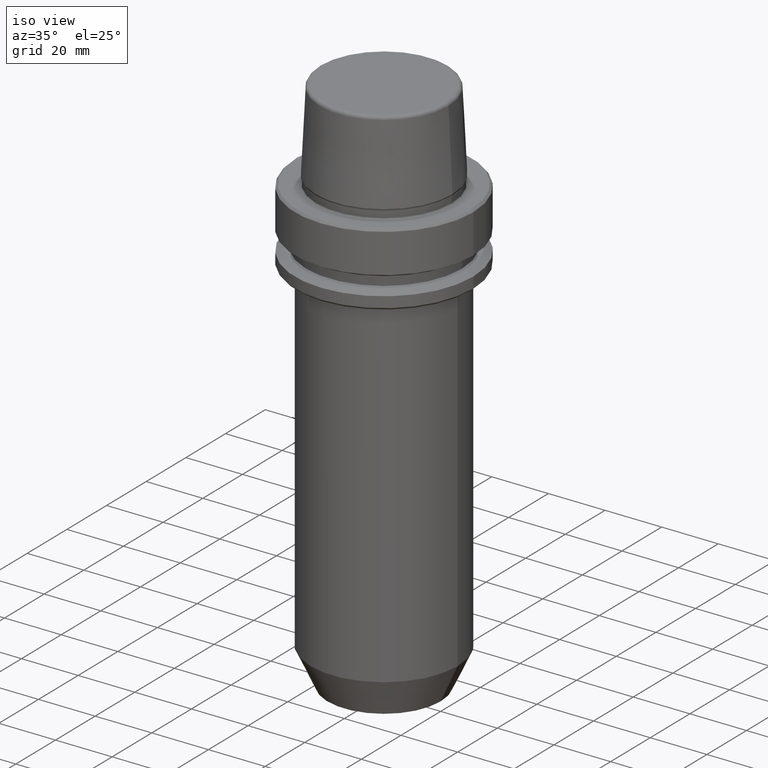
[diagram: clean part render]
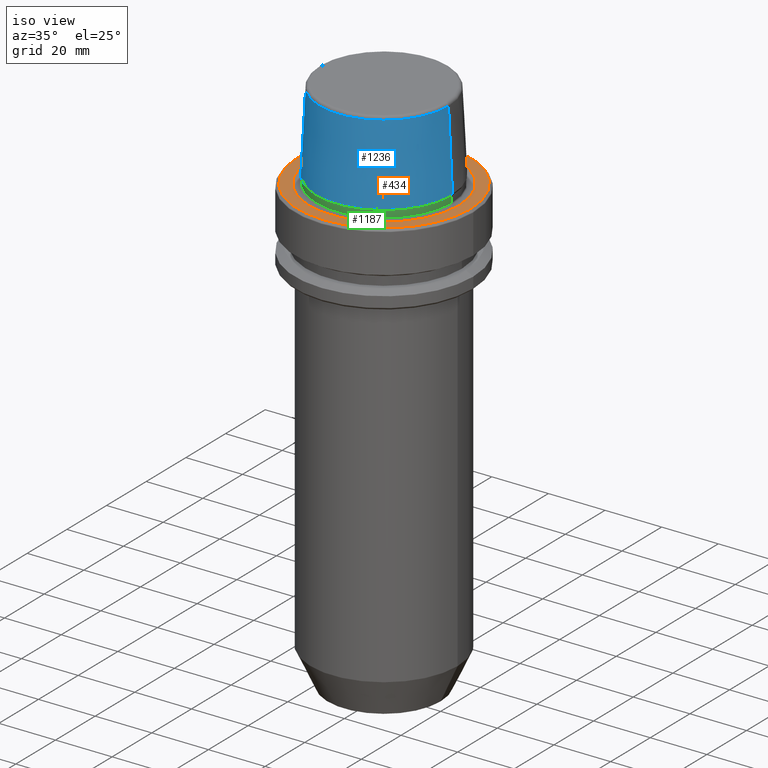
[diagram: same view with three faces highlighted in distinct colors, each labeled with its STEP entity id]
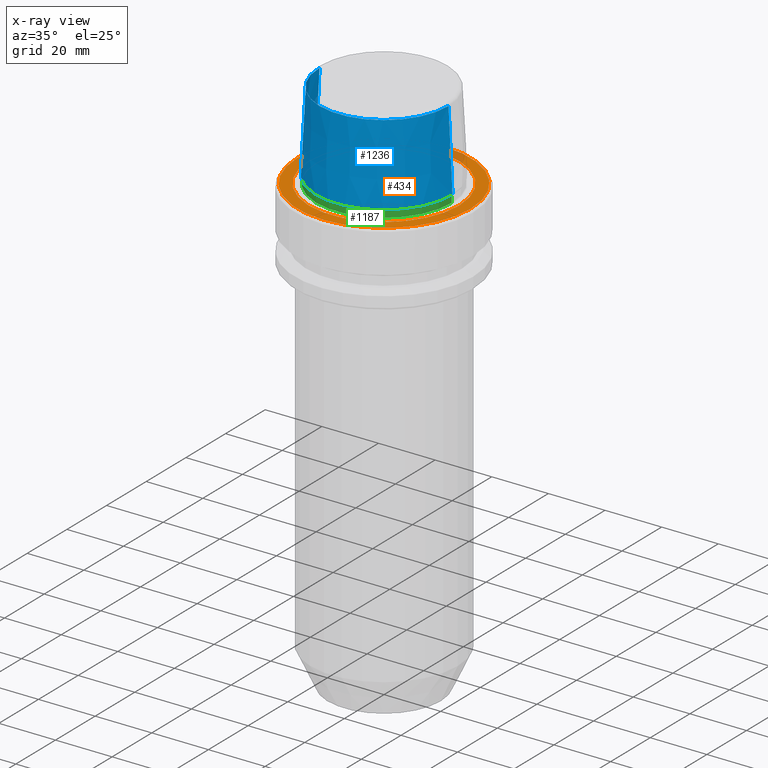
[diagram: x-ray of the same camera — body ghosted, the three highlighted faces saturated]
A machine part, iso view with three faces highlighted in distinct colors.
The next image is the same camera in x-ray (body ghosted, the three faces saturated) — at least one of them is partly hidden behind the body in this view.
Their STEP definitions:

[orange] entity #434 — the highlighted planar face has unit normal (0, 0, -1).
#4 = DIRECTION ( 'NONE',  ( -0.0000000000000000000, -0.0000000000000000000, 1.000000000000000000 ) ) ;
#22 = CIRCLE ( 'NONE', #111, 26.52499999999999900 ) ;
#33 = DIRECTION ( 'NONE',  ( 1.000000000000000000, 0.0000000000000000000, 0.0000000000000000000 ) ) ;
#40 = FACE_BOUND ( 'NONE', #356, .T. ) ;
#84 = CARTESIAN_POINT ( 'NONE',  ( -30.53431457505076100, 3.756694181974138600E-015, 0.0000000000000000000 ) ) ;
#111 = AXIS2_PLACEMENT_3D ( 'NONE', #684, #4, #581 ) ;
#183 = DIRECTION ( 'NONE',  ( 0.0000000000000000000, 0.0000000000000000000, -1.000000000000000000 ) ) ;
#219 = ORIENTED_EDGE ( 'NONE', *, *, #284, .T. ) ;
#277 = CARTESIAN_POINT ( 'NONE',  ( 0.0000000000000000000, 26.52499999999999900, -1.111307226797642000E-015 ) ) ;
#284 = EDGE_CURVE ( 'NONE', #1058, #1141, #681, .T. ) ;
#294 = ORIENTED_EDGE ( 'NONE', *, *, #944, .F. ) ;
#335 = DIRECTION ( 'NONE',  ( 1.000000000000000000, 0.0000000000000000000, 0.0000000000000000000 ) ) ;
#356 = EDGE_LOOP ( 'NONE', ( #294, #956 ) ) ;
#426 = CARTESIAN_POINT ( 'NONE',  ( 0.0000000000000000000, 0.0000000000000000000, 0.0000000000000000000 ) ) ;
#434 = ADVANCED_FACE ( 'NONE', ( #40, #876 ), #468, .F. ) ;
#438 = AXIS2_PLACEMENT_3D ( 'NONE', #277, #183, #758 ) ;
#441 = VERTEX_POINT ( 'NONE', #954 ) ;
#468 = PLANE ( 'NONE',  #438 ) ;
#490 = EDGE_CURVE ( 'NONE', #1257, #441, #793, .T. ) ;
#548 = CARTESIAN_POINT ( 'NONE',  ( 0.0000000000000000000, 0.0000000000000000000, 0.0000000000000000000 ) ) ;
#581 = DIRECTION ( 'NONE',  ( 1.000000000000000000, 0.0000000000000000000, 0.0000000000000000000 ) ) ;
#642 = EDGE_CURVE ( 'NONE', #1141, #1058, #843, .T. ) ;
#643 = DIRECTION ( 'NONE',  ( -0.0000000000000000000, -0.0000000000000000000, 1.000000000000000000 ) ) ;
#665 = DIRECTION ( 'NONE',  ( -0.0000000000000000000, -0.0000000000000000000, 1.000000000000000000 ) ) ;
#681 = CIRCLE ( 'NONE', #919, 30.53431457505076100 ) ;
#684 = CARTESIAN_POINT ( 'NONE',  ( 0.0000000000000000000, 0.0000000000000000000, 0.0000000000000000000 ) ) ;
#696 = CARTESIAN_POINT ( 'NONE',  ( 0.0000000000000000000, 0.0000000000000000000, 0.0000000000000000000 ) ) ;
#712 = EDGE_LOOP ( 'NONE', ( #219, #961 ) ) ;
#741 = DIRECTION ( 'NONE',  ( 1.000000000000000000, 0.0000000000000000000, 0.0000000000000000000 ) ) ;
#742 = CARTESIAN_POINT ( 'NONE',  ( -26.52499999999999900, 3.248375634738354300E-015, 0.0000000000000000000 ) ) ;
#758 = DIRECTION ( 'NONE',  ( -1.000000000000000000, 0.0000000000000000000, -0.0000000000000000000 ) ) ;
#793 = CIRCLE ( 'NONE', #1023, 26.52499999999999900 ) ;
#843 = CIRCLE ( 'NONE', #941, 30.53431457505076100 ) ;
#876 = FACE_OUTER_BOUND ( 'NONE', #712, .T. ) ;
#919 = AXIS2_PLACEMENT_3D ( 'NONE', #548, #643, #741 ) ;
#941 = AXIS2_PLACEMENT_3D ( 'NONE', #426, #1004, #335 ) ;
#944 = EDGE_CURVE ( 'NONE', #441, #1257, #22, .T. ) ;
#952 = CARTESIAN_POINT ( 'NONE',  ( 30.53431457505076100, 0.0000000000000000000, 0.0000000000000000000 ) ) ;
#954 = CARTESIAN_POINT ( 'NONE',  ( 26.52499999999999900, 0.0000000000000000000, 0.0000000000000000000 ) ) ;
#956 = ORIENTED_EDGE ( 'NONE', *, *, #490, .F. ) ;
#961 = ORIENTED_EDGE ( 'NONE', *, *, #642, .T. ) ;
#1004 = DIRECTION ( 'NONE',  ( -0.0000000000000000000, -0.0000000000000000000, 1.000000000000000000 ) ) ;
#1023 = AXIS2_PLACEMENT_3D ( 'NONE', #696, #665, #33 ) ;
#1058 = VERTEX_POINT ( 'NONE', #952 ) ;
#1141 = VERTEX_POINT ( 'NONE', #84 ) ;
#1257 = VERTEX_POINT ( 'NONE', #742 ) ;

[blue] entity #1236 — the highlighted conical surface has half-angle 2.868 deg.
#59 = CARTESIAN_POINT ( 'NONE',  ( 22.77957961851797100, 2.874852597157249900E-015, 30.76004333261571900 ) ) ;
#76 = ORIENTED_EDGE ( 'NONE', *, *, #338, .F. ) ;
#102 = ORIENTED_EDGE ( 'NONE', *, *, #777, .T. ) ;
#107 = CIRCLE ( 'NONE', #685, 22.77957961851797100 ) ;
#125 = DIRECTION ( 'NONE',  ( -0.0000000000000000000, -0.0000000000000000000, 1.000000000000000000 ) ) ;
#131 = FACE_OUTER_BOUND ( 'NONE', #1181, .T. ) ;
#143 = CARTESIAN_POINT ( 'NONE',  ( -24.17032625081241900, 0.0000000000000000000, 3.000000000000002700 ) ) ;
#158 = AXIS2_PLACEMENT_3D ( 'NONE', #449, #255, #934 ) ;
#178 = CARTESIAN_POINT ( 'NONE',  ( -22.77957961851797100, 0.0000000000000000000, 30.76004333261571900 ) ) ;
#190 = VERTEX_POINT ( 'NONE', #1089 ) ;
#231 = DIRECTION ( 'NONE',  ( -0.05003611051310812000, 0.0000000000000000000, -0.9987474093306675200 ) ) ;
#255 = DIRECTION ( 'NONE',  ( 0.0000000000000000000, 0.0000000000000000000, -1.000000000000000000 ) ) ;
#281 = ORIENTED_EDGE ( 'NONE', *, *, #616, .F. ) ;
#309 = EDGE_CURVE ( 'NONE', #1124, #190, #1182, .T. ) ;
#332 = AXIS2_PLACEMENT_3D ( 'NONE', #798, #125, #707 ) ;
#338 = EDGE_CURVE ( 'NONE', #1237, #346, #1113, .T. ) ;
#344 = VECTOR ( 'NONE', #231, 1000.000000000000200 ) ;
#345 = DIRECTION ( 'NONE',  ( 1.000000000000000000, 0.0000000000000000000, 0.0000000000000000000 ) ) ;
#346 = VERTEX_POINT ( 'NONE', #1245 ) ;
#436 = CARTESIAN_POINT ( 'NONE',  ( 0.0000000000000000000, 0.0000000000000000000, 30.76004333261571900 ) ) ;
#444 = VECTOR ( 'NONE', #951, 1000.000000000000200 ) ;
#449 = CARTESIAN_POINT ( 'NONE',  ( 0.0000000000000000000, 0.0000000000000000000, 3.000000000000002700 ) ) ;
#531 = ORIENTED_EDGE ( 'NONE', *, *, #309, .T. ) ;
#616 = EDGE_CURVE ( 'NONE', #1124, #1237, #107, .T. ) ;
#685 = AXIS2_PLACEMENT_3D ( 'NONE', #436, #1011, #345 ) ;
#707 = DIRECTION ( 'NONE',  ( 1.000000000000000000, 0.0000000000000000000, 0.0000000000000000000 ) ) ;
#777 = EDGE_CURVE ( 'NONE', #190, #346, #901, .T. ) ;
#798 = CARTESIAN_POINT ( 'NONE',  ( 0.0000000000000000000, 0.0000000000000000000, 3.000000000000002700 ) ) ;
#901 = CIRCLE ( 'NONE', #332, 24.17032625081241900 ) ;
#931 = CONICAL_SURFACE ( 'NONE', #158, 24.17032625081241900, 0.05005701257456005000 ) ;
#934 = DIRECTION ( 'NONE',  ( -1.000000000000000000, 0.0000000000000000000, 0.0000000000000000000 ) ) ;
#951 = DIRECTION ( 'NONE',  ( 0.05003611051310812000, 6.127656258166108900E-018, -0.9987474093306675200 ) ) ;
#1011 = DIRECTION ( 'NONE',  ( -0.0000000000000000000, -0.0000000000000000000, 1.000000000000000000 ) ) ;
#1089 = CARTESIAN_POINT ( 'NONE',  ( -24.17032625081241900, 2.960011267740467600E-015, 3.000000000000002700 ) ) ;
#1113 = LINE ( 'NONE', #1146, #444 ) ;
#1124 = VERTEX_POINT ( 'NONE', #178 ) ;
#1146 = CARTESIAN_POINT ( 'NONE',  ( 24.17032625081241900, 2.960011267740467600E-015, 3.000000000000002700 ) ) ;
#1181 = EDGE_LOOP ( 'NONE', ( #76, #281, #531, #102 ) ) ;
#1182 = LINE ( 'NONE', #143, #344 ) ;
#1236 = ADVANCED_FACE ( 'NONE', ( #131 ), #931, .T. ) ;
#1237 = VERTEX_POINT ( 'NONE', #59 ) ;
#1245 = CARTESIAN_POINT ( 'NONE',  ( 24.17032625081241900, 0.0000000000000000000, 3.000000000000002700 ) ) ;

[green] entity #1187 — the highlighted cylindrical surface (partial cylindrical patch) has radius 23.89 mm, axis along (-0, -0, 1).
#19 = AXIS2_PLACEMENT_3D ( 'NONE', #262, #74, #649 ) ;
#70 = CYLINDRICAL_SURFACE ( 'NONE', #19, 23.89000000000000100 ) ;
#74 = DIRECTION ( 'NONE',  ( -0.0000000000000000000, -0.0000000000000000000, 1.000000000000000000 ) ) ;
#92 = EDGE_CURVE ( 'NONE', #163, #1096, #382, .T. ) ;
#120 = VECTOR ( 'NONE', #791, 1000.000000000000000 ) ;
#127 = DIRECTION ( 'NONE',  ( 1.000000000000000000, 0.0000000000000000000, 0.0000000000000000000 ) ) ;
#163 = VERTEX_POINT ( 'NONE', #611 ) ;
#166 = AXIS2_PLACEMENT_3D ( 'NONE', #773, #754, #127 ) ;
#262 = CARTESIAN_POINT ( 'NONE',  ( 0.0000000000000000000, 0.0000000000000000000, 78.96908074195309300 ) ) ;
#287 = EDGE_CURVE ( 'NONE', #323, #1096, #644, .T. ) ;
#315 = CARTESIAN_POINT ( 'NONE',  ( 23.89000000000000400, 0.0000000000000000000, 0.1312552021302954000 ) ) ;
#323 = VERTEX_POINT ( 'NONE', #315 ) ;
#339 = CARTESIAN_POINT ( 'NONE',  ( -23.89000000000000400, 2.961613815265650600E-015, 0.1312552021302954000 ) ) ;
#382 = CIRCLE ( 'NONE', #701, 23.89000000000000100 ) ;
#386 = CARTESIAN_POINT ( 'NONE',  ( -23.89000000000000100, 2.925681203163027000E-015, 78.96908074195309300 ) ) ;
#458 = ORIENTED_EDGE ( 'NONE', *, *, #92, .F. ) ;
#485 = DIRECTION ( 'NONE',  ( -0.0000000000000000000, -0.0000000000000000000, 1.000000000000000000 ) ) ;
#537 = EDGE_CURVE ( 'NONE', #637, #323, #810, .T. ) ;
#549 = ORIENTED_EDGE ( 'NONE', *, *, #287, .T. ) ;
#558 = DIRECTION ( 'NONE',  ( 1.000000000000000000, 0.0000000000000000000, 0.0000000000000000000 ) ) ;
#611 = CARTESIAN_POINT ( 'NONE',  ( -23.89000000000000100, 2.942846235451747500E-015, 2.398838415132276100 ) ) ;
#637 = VERTEX_POINT ( 'NONE', #339 ) ;
#644 = LINE ( 'NONE', #890, #120 ) ;
#649 = DIRECTION ( 'NONE',  ( 1.000000000000000000, 0.0000000000000000000, 0.0000000000000000000 ) ) ;
#701 = AXIS2_PLACEMENT_3D ( 'NONE', #1248, #1137, #558 ) ;
#754 = DIRECTION ( 'NONE',  ( -0.0000000000000000000, -0.0000000000000000000, 1.000000000000000000 ) ) ;
#773 = CARTESIAN_POINT ( 'NONE',  ( 0.0000000000000000000, 0.0000000000000000000, 0.1312552021302954000 ) ) ;
#791 = DIRECTION ( 'NONE',  ( -0.0000000000000000000, -0.0000000000000000000, 1.000000000000000000 ) ) ;
#810 = CIRCLE ( 'NONE', #166, 23.89000000000000400 ) ;
#852 = CARTESIAN_POINT ( 'NONE',  ( 23.89000000000000100, 0.0000000000000000000, 2.398838415132276100 ) ) ;
#890 = CARTESIAN_POINT ( 'NONE',  ( 23.89000000000000100, 0.0000000000000000000, 78.96908074195309300 ) ) ;
#893 = FACE_OUTER_BOUND ( 'NONE', #997, .T. ) ;
#927 = ORIENTED_EDGE ( 'NONE', *, *, #537, .T. ) ;
#969 = EDGE_CURVE ( 'NONE', #637, #163, #1243, .T. ) ;
#973 = ORIENTED_EDGE ( 'NONE', *, *, #969, .F. ) ;
#997 = EDGE_LOOP ( 'NONE', ( #973, #927, #549, #458 ) ) ;
#1096 = VERTEX_POINT ( 'NONE', #852 ) ;
#1137 = DIRECTION ( 'NONE',  ( -0.0000000000000000000, -0.0000000000000000000, 1.000000000000000000 ) ) ;
#1187 = ADVANCED_FACE ( 'NONE', ( #893 ), #70, .T. ) ;
#1232 = VECTOR ( 'NONE', #485, 1000.000000000000000 ) ;
#1243 = LINE ( 'NONE', #386, #1232 ) ;
#1248 = CARTESIAN_POINT ( 'NONE',  ( 0.0000000000000000000, 0.0000000000000000000, 2.398838415132276100 ) ) ;